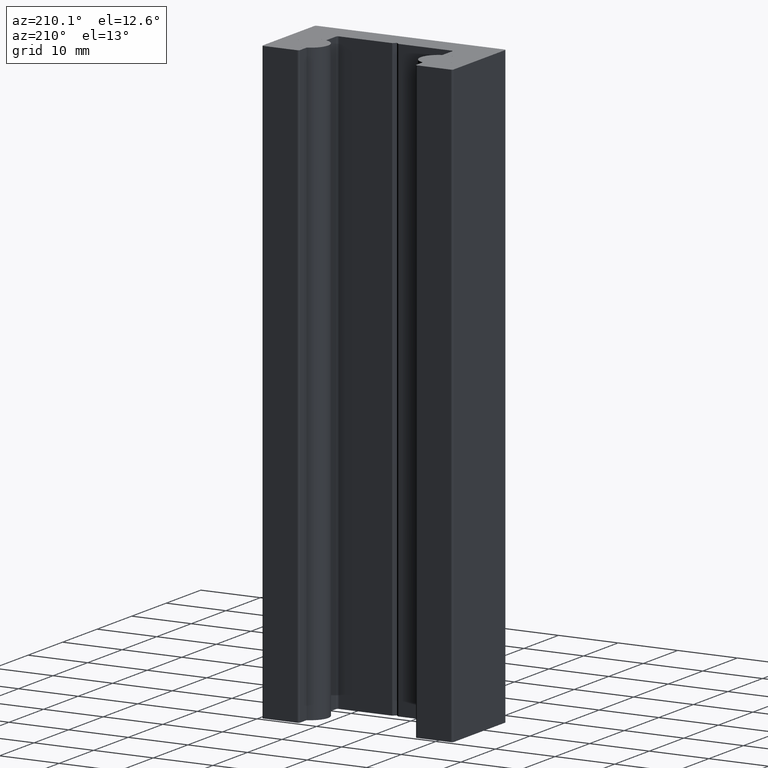
[diagram: clean part render]
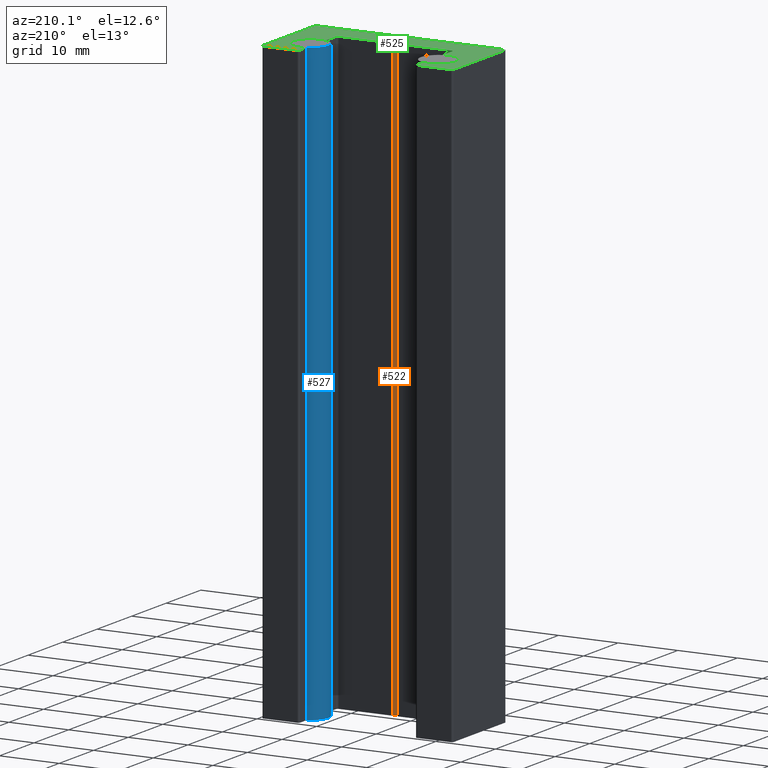
[diagram: same view with three faces highlighted in distinct colors, each labeled with its STEP entity id]
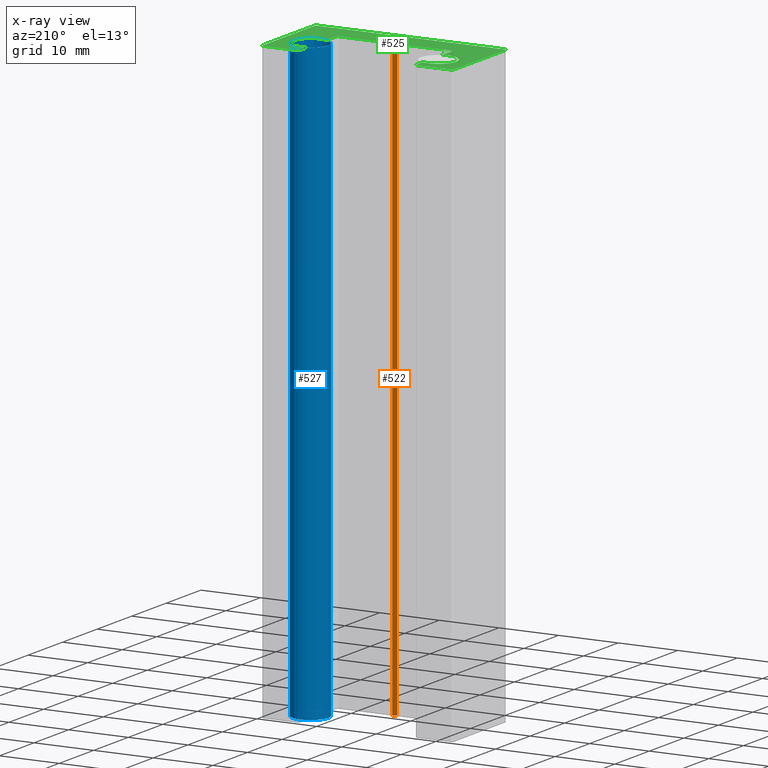
[diagram: x-ray of the same camera — body ghosted, the three highlighted faces saturated]
A machine part, auxiliary view with three faces highlighted in distinct colors.
The next image is the same camera in x-ray (body ghosted, the three faces saturated) — at least one of them is partly hidden behind the body in this view.
Their STEP definitions:

[orange] entity #522 — the highlighted planar face has unit normal (-0.7071, 0.7071, 0).
#43=PLANE('',#635);
#69=FACE_OUTER_BOUND('',#97,.T.);
#97=EDGE_LOOP('',(#449,#450,#451,#452));
#118=LINE('',#862,#168);
#131=LINE('',#898,#181);
#149=LINE('',#943,#199);
#150=LINE('',#945,#200);
#168=VECTOR('',#691,10.);
#181=VECTOR('',#726,10.);
#199=VECTOR('',#778,10.);
#200=VECTOR('',#781,10.);
#247=VERTEX_POINT('',#859);
#248=VERTEX_POINT('',#861);
#260=VERTEX_POINT('',#897);
#270=VERTEX_POINT('',#941);
#297=EDGE_CURVE('',#248,#247,#118,.T.);
#315=EDGE_CURVE('',#248,#260,#131,.T.);
#338=EDGE_CURVE('',#247,#270,#149,.T.);
#339=EDGE_CURVE('',#270,#260,#150,.T.);
#449=ORIENTED_EDGE('',*,*,#339,.T.);
#450=ORIENTED_EDGE('',*,*,#315,.F.);
#451=ORIENTED_EDGE('',*,*,#297,.T.);
#452=ORIENTED_EDGE('',*,*,#338,.T.);
#522=ADVANCED_FACE('',(#69),#43,.T.);
#635=AXIS2_PLACEMENT_3D('',#944,#779,#780);
#691=DIRECTION('',(-0.707106781186546,-0.707106781186549,0.));
#726=DIRECTION('',(0.,0.,1.));
#778=DIRECTION('',(0.,0.,1.));
#779=DIRECTION('center_axis',(-0.707106781186549,0.707106781186546,0.));
#780=DIRECTION('ref_axis',(0.,0.,1.));
#781=DIRECTION('',(0.707106781186546,0.707106781186549,0.));
#859=CARTESIAN_POINT('',(0.,4.,-50.));
#861=CARTESIAN_POINT('',(0.5,4.5,-50.));
#862=CARTESIAN_POINT('',(0.5,4.5,-50.));
#897=CARTESIAN_POINT('',(0.5,4.5,50.));
#898=CARTESIAN_POINT('',(0.5,4.5,0.));
#941=CARTESIAN_POINT('',(0.,4.,50.));
#943=CARTESIAN_POINT('',(0.,4.,0.));
#944=CARTESIAN_POINT('Origin',(0.,4.,0.));
#945=CARTESIAN_POINT('',(0.5,4.5,50.));

[blue] entity #527 — the highlighted cylindrical surface (bore or boss wall) has radius 3 mm, axis along (0, 0, 1).
#74=FACE_OUTER_BOUND('',#102,.T.);
#102=EDGE_LOOP('',(#485,#486,#487,#488));
#153=LINE('',#960,#203);
#203=VECTOR('',#802,3.);
#224=CIRCLE('',#642,3.);
#225=CIRCLE('',#644,3.);
#272=VERTEX_POINT('',#955);
#273=VERTEX_POINT('',#958);
#343=EDGE_CURVE('',#272,#272,#224,.T.);
#344=EDGE_CURVE('',#273,#273,#225,.T.);
#345=EDGE_CURVE('',#273,#272,#153,.T.);
#485=ORIENTED_EDGE('',*,*,#344,.T.);
#486=ORIENTED_EDGE('',*,*,#345,.T.);
#487=ORIENTED_EDGE('',*,*,#343,.T.);
#488=ORIENTED_EDGE('',*,*,#345,.F.);
#500=CYLINDRICAL_SURFACE('',#643,3.);
#527=ADVANCED_FACE('',(#74),#500,.T.);
#642=AXIS2_PLACEMENT_3D('',#956,#796,#797);
#643=AXIS2_PLACEMENT_3D('',#957,#798,#799);
#644=AXIS2_PLACEMENT_3D('',#959,#800,#801);
#796=DIRECTION('center_axis',(0.,0.,1.));
#797=DIRECTION('ref_axis',(-1.,0.,0.));
#798=DIRECTION('center_axis',(0.,0.,1.));
#799=DIRECTION('ref_axis',(-1.,0.,0.));
#800=DIRECTION('center_axis',(0.,0.,-1.));
#801=DIRECTION('ref_axis',(-1.,0.,0.));
#802=DIRECTION('',(0.,0.,-1.));
#955=CARTESIAN_POINT('',(3.,3.67394039744206E-16,-50.));
#956=CARTESIAN_POINT('Origin',(0.,0.,-50.));
#957=CARTESIAN_POINT('Origin',(0.,0.,0.));
#958=CARTESIAN_POINT('',(3.,3.67394039744206E-16,50.));
#959=CARTESIAN_POINT('Origin',(0.,0.,50.));
#960=CARTESIAN_POINT('',(3.,3.67394039744206E-16,0.));

[green] entity #525 — the highlighted planar face has unit normal (0, 0, 1).
#45=PLANE('',#639);
#72=FACE_OUTER_BOUND('',#100,.T.);
#100=EDGE_LOOP('',(#461,#462,#463,#464,#465,#466,#467,#468,#469,#470,#471,
#472,#473,#474,#475,#476,#477,#478,#479,#480,#481,#482,#483));
#108=LINE('',#827,#158);
#124=LINE('',#879,#174);
#128=LINE('',#889,#178);
#132=LINE('',#899,#182);
#136=LINE('',#909,#186);
#138=LINE('',#915,#188);
#141=LINE('',#923,#191);
#143=LINE('',#929,#193);
#144=LINE('',#932,#194);
#146=LINE('',#938,#196);
#148=LINE('',#942,#198);
#150=LINE('',#945,#200);
#151=LINE('',#948,#201);
#158=VECTOR('',#665,10.);
#174=VECTOR('',#707,10.);
#178=VECTOR('',#717,10.);
#182=VECTOR('',#727,10.);
#186=VECTOR('',#737,10.);
#188=VECTOR('',#745,10.);
#191=VECTOR('',#754,10.);
#193=VECTOR('',#762,10.);
#194=VECTOR('',#765,10.);
#196=VECTOR('',#773,10.);
#198=VECTOR('',#777,10.);
#200=VECTOR('',#781,10.);
#201=VECTOR('',#784,10.);
#204=CIRCLE('',#596,0.3);
#215=CIRCLE('',#610,0.3);
#216=CIRCLE('',#613,0.3);
#217=CIRCLE('',#616,0.3);
#218=CIRCLE('',#619,0.3);
#219=CIRCLE('',#622,0.3);
#220=CIRCLE('',#625,0.3);
#221=CIRCLE('',#628,0.3);
#222=CIRCLE('',#632,3.);
#223=CIRCLE('',#638,3.);
#226=VERTEX_POINT('',#814);
#227=VERTEX_POINT('',#815);
#231=VERTEX_POINT('',#825);
#252=VERTEX_POINT('',#871);
#253=VERTEX_POINT('',#872);
#254=VERTEX_POINT('',#877);
#255=VERTEX_POINT('',#881);
#256=VERTEX_POINT('',#883);
#257=VERTEX_POINT('',#887);
#258=VERTEX_POINT('',#891);
#259=VERTEX_POINT('',#893);
#260=VERTEX_POINT('',#897);
#261=VERTEX_POINT('',#901);
#262=VERTEX_POINT('',#902);
#263=VERTEX_POINT('',#907);
#264=VERTEX_POINT('',#911);
#265=VERTEX_POINT('',#917);
#266=VERTEX_POINT('',#921);
#267=VERTEX_POINT('',#925);
#268=VERTEX_POINT('',#931);
#269=VERTEX_POINT('',#937);
#270=VERTEX_POINT('',#941);
#271=VERTEX_POINT('',#947);
#274=EDGE_CURVE('',#226,#227,#204,.T.);
#280=EDGE_CURVE('',#231,#226,#108,.T.);
#302=EDGE_CURVE('',#252,#253,#215,.T.);
#306=EDGE_CURVE('',#254,#252,#124,.T.);
#308=EDGE_CURVE('',#255,#256,#216,.T.);
#311=EDGE_CURVE('',#257,#255,#128,.T.);
#313=EDGE_CURVE('',#258,#259,#217,.T.);
#316=EDGE_CURVE('',#260,#258,#132,.T.);
#317=EDGE_CURVE('',#261,#262,#218,.T.);
#321=EDGE_CURVE('',#263,#261,#136,.T.);
#322=EDGE_CURVE('',#264,#263,#219,.T.);
#324=EDGE_CURVE('',#227,#264,#138,.T.);
#325=EDGE_CURVE('',#265,#254,#220,.T.);
#328=EDGE_CURVE('',#266,#265,#141,.T.);
#330=EDGE_CURVE('',#267,#266,#221,.T.);
#331=EDGE_CURVE('',#262,#267,#143,.T.);
#332=EDGE_CURVE('',#253,#268,#144,.T.);
#334=EDGE_CURVE('',#268,#257,#222,.T.);
#335=EDGE_CURVE('',#256,#269,#146,.T.);
#337=EDGE_CURVE('',#269,#270,#148,.T.);
#339=EDGE_CURVE('',#270,#260,#150,.T.);
#340=EDGE_CURVE('',#259,#271,#151,.T.);
#342=EDGE_CURVE('',#271,#231,#223,.T.);
#461=ORIENTED_EDGE('',*,*,#274,.F.);
#462=ORIENTED_EDGE('',*,*,#280,.F.);
#463=ORIENTED_EDGE('',*,*,#342,.F.);
#464=ORIENTED_EDGE('',*,*,#340,.F.);
#465=ORIENTED_EDGE('',*,*,#313,.F.);
#466=ORIENTED_EDGE('',*,*,#316,.F.);
#467=ORIENTED_EDGE('',*,*,#339,.F.);
#468=ORIENTED_EDGE('',*,*,#337,.F.);
#469=ORIENTED_EDGE('',*,*,#335,.F.);
#470=ORIENTED_EDGE('',*,*,#308,.F.);
#471=ORIENTED_EDGE('',*,*,#311,.F.);
#472=ORIENTED_EDGE('',*,*,#334,.F.);
#473=ORIENTED_EDGE('',*,*,#332,.F.);
#474=ORIENTED_EDGE('',*,*,#302,.F.);
#475=ORIENTED_EDGE('',*,*,#306,.F.);
#476=ORIENTED_EDGE('',*,*,#325,.F.);
#477=ORIENTED_EDGE('',*,*,#328,.F.);
#478=ORIENTED_EDGE('',*,*,#330,.F.);
#479=ORIENTED_EDGE('',*,*,#331,.F.);
#480=ORIENTED_EDGE('',*,*,#317,.F.);
#481=ORIENTED_EDGE('',*,*,#321,.F.);
#482=ORIENTED_EDGE('',*,*,#322,.F.);
#483=ORIENTED_EDGE('',*,*,#324,.F.);
#525=ADVANCED_FACE('',(#72),#45,.T.);
#596=AXIS2_PLACEMENT_3D('',#816,#655,#656);
#610=AXIS2_PLACEMENT_3D('',#873,#700,#701);
#613=AXIS2_PLACEMENT_3D('',#884,#711,#712);
#616=AXIS2_PLACEMENT_3D('',#894,#721,#722);
#619=AXIS2_PLACEMENT_3D('',#903,#730,#731);
#622=AXIS2_PLACEMENT_3D('',#912,#740,#741);
#625=AXIS2_PLACEMENT_3D('',#918,#748,#749);
#628=AXIS2_PLACEMENT_3D('',#927,#758,#759);
#632=AXIS2_PLACEMENT_3D('',#935,#769,#770);
#638=AXIS2_PLACEMENT_3D('',#951,#788,#789);
#639=AXIS2_PLACEMENT_3D('',#952,#790,#791);
#655=DIRECTION('center_axis',(0.,0.,-1.));
#656=DIRECTION('ref_axis',(-0.707106781186542,0.707106781186553,0.));
#665=DIRECTION('',(7.66879415337645E-15,1.,0.));
#700=DIRECTION('center_axis',(0.,0.,-1.));
#701=DIRECTION('ref_axis',(0.707106781186545,0.70710678118655,0.));
#707=DIRECTION('',(1.,3.55271367880051E-16,0.));
#711=DIRECTION('center_axis',(0.,0.,1.));
#712=DIRECTION('ref_axis',(-0.707106781186547,-0.707106781186547,0.));
#717=DIRECTION('',(0.,-1.,0.));
#721=DIRECTION('center_axis',(0.,0.,1.));
#722=DIRECTION('ref_axis',(0.707106781186547,-0.707106781186547,0.));
#727=DIRECTION('',(1.,-6.00120553851436E-17,0.));
#730=DIRECTION('center_axis',(0.,0.,-1.));
#731=DIRECTION('ref_axis',(0.707106781186545,-0.70710678118655,0.));
#737=DIRECTION('',(0.,-1.,0.));
#740=DIRECTION('center_axis',(0.,0.,-1.));
#741=DIRECTION('ref_axis',(0.707106781186548,0.707106781186548,0.));
#745=DIRECTION('',(1.,-7.10542735760102E-16,0.));
#748=DIRECTION('center_axis',(0.,0.,-1.));
#749=DIRECTION('ref_axis',(-0.707106781186548,0.707106781186548,0.));
#754=DIRECTION('',(0.,1.,0.));
#758=DIRECTION('center_axis',(0.,0.,-1.));
#759=DIRECTION('ref_axis',(-0.70710678118655,-0.707106781186545,0.));
#762=DIRECTION('',(-1.,0.,0.));
#765=DIRECTION('',(4.60127649202588E-15,-1.,0.));
#769=DIRECTION('center_axis',(0.,0.,1.));
#770=DIRECTION('ref_axis',(-0.333333333333333,-0.942809041582063,0.));
#773=DIRECTION('',(1.,1.20024110770287E-16,0.));
#777=DIRECTION('',(0.707106781186546,-0.707106781186549,0.));
#781=DIRECTION('',(0.707106781186546,0.707106781186549,0.));
#784=DIRECTION('',(0.,1.,0.));
#788=DIRECTION('center_axis',(0.,0.,1.));
#789=DIRECTION('ref_axis',(0.333333333333333,0.942809041582063,0.));
#790=DIRECTION('center_axis',(0.,0.,1.));
#791=DIRECTION('ref_axis',(1.,0.,0.));
#814=CARTESIAN_POINT('',(9.75000000000002,15.2,50.));
#815=CARTESIAN_POINT('',(10.05,15.5,50.));
#816=CARTESIAN_POINT('Origin',(10.05,15.2,50.));
#825=CARTESIAN_POINT('',(9.75,13.3284271247462,50.));
#827=CARTESIAN_POINT('',(9.75000000000002,15.5,50.));
#871=CARTESIAN_POINT('',(-10.05,15.5,50.));
#872=CARTESIAN_POINT('',(-9.75000000000001,15.2,50.));
#873=CARTESIAN_POINT('Origin',(-10.05,15.2,50.));
#877=CARTESIAN_POINT('',(-15.7,15.5,50.));
#879=CARTESIAN_POINT('',(-9.75000000000001,15.5,50.));
#881=CARTESIAN_POINT('',(-9.75,4.8,50.));
#883=CARTESIAN_POINT('',(-9.45,4.5,50.));
#884=CARTESIAN_POINT('Origin',(-9.45,4.8,50.));
#887=CARTESIAN_POINT('',(-9.75,7.67157287525381,50.));
#889=CARTESIAN_POINT('',(-9.75,4.5,50.));
#891=CARTESIAN_POINT('',(9.45,4.5,50.));
#893=CARTESIAN_POINT('',(9.75,4.8,50.));
#894=CARTESIAN_POINT('Origin',(9.45,4.8,50.));
#897=CARTESIAN_POINT('',(0.5,4.5,50.));
#899=CARTESIAN_POINT('',(9.75,4.5,50.));
#901=CARTESIAN_POINT('',(16.,0.3,50.));
#902=CARTESIAN_POINT('',(15.7,0.,50.));
#903=CARTESIAN_POINT('Origin',(15.7,0.3,50.));
#907=CARTESIAN_POINT('',(16.,15.2,50.));
#909=CARTESIAN_POINT('',(16.,0.,50.));
#911=CARTESIAN_POINT('',(15.7,15.5,50.));
#912=CARTESIAN_POINT('Origin',(15.7,15.2,50.));
#915=CARTESIAN_POINT('',(16.,15.5,50.));
#917=CARTESIAN_POINT('',(-16.,15.2,50.));
#918=CARTESIAN_POINT('Origin',(-15.7,15.2,50.));
#921=CARTESIAN_POINT('',(-16.,0.3,50.));
#923=CARTESIAN_POINT('',(-16.,15.5,50.));
#925=CARTESIAN_POINT('',(-15.7,0.,50.));
#927=CARTESIAN_POINT('Origin',(-15.7,0.3,50.));
#929=CARTESIAN_POINT('',(-16.,0.,50.));
#931=CARTESIAN_POINT('',(-9.75,13.3284271247462,50.));
#932=CARTESIAN_POINT('',(-9.75,13.3284271247462,50.));
#935=CARTESIAN_POINT('Origin',(-10.75,10.5,50.));
#937=CARTESIAN_POINT('',(-0.5,4.5,50.));
#938=CARTESIAN_POINT('',(-0.5,4.5,50.));
#941=CARTESIAN_POINT('',(0.,4.,50.));
#942=CARTESIAN_POINT('',(0.,4.,50.));
#945=CARTESIAN_POINT('',(0.5,4.5,50.));
#947=CARTESIAN_POINT('',(9.75,7.67157287525381,50.));
#948=CARTESIAN_POINT('',(9.75,7.67157287525381,50.));
#951=CARTESIAN_POINT('Origin',(10.75,10.5,50.));
#952=CARTESIAN_POINT('Origin',(0.,6.70556436952344,50.));